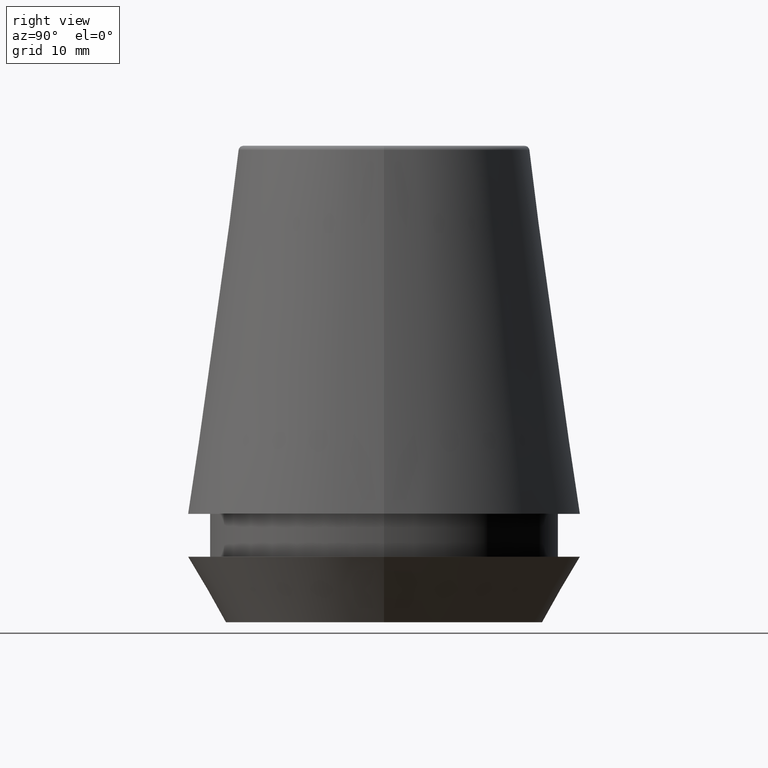
[diagram: clean part render]
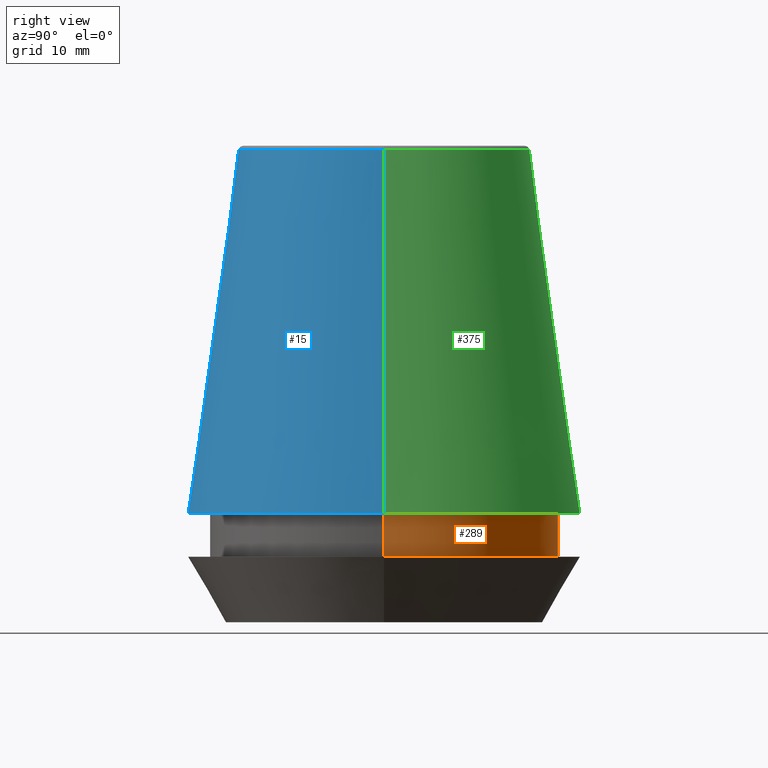
[diagram: same view with three faces highlighted in distinct colors, each labeled with its STEP entity id]
A machine part, right view with three faces highlighted in distinct colors.
Their STEP definitions:

[orange] entity #289 — the highlighted cylindrical surface (partial cylindrical patch) has radius 14.6 mm, axis along (-0, -0, 1).
#14 = VECTOR ( 'NONE', #386, 1000.000000000000000 ) ;
#39 = DIRECTION ( 'NONE',  ( 1.000000000000000000, 0.0000000000000000000, 0.0000000000000000000 ) ) ;
#53 = CARTESIAN_POINT ( 'NONE',  ( 0.0000000000000000000, 0.0000000000000000000, 5.500000000000005300 ) ) ;
#71 = EDGE_LOOP ( 'NONE', ( #118, #343, #288, #203 ) ) ;
#79 = AXIS2_PLACEMENT_3D ( 'NONE', #53, #110, #360 ) ;
#81 = CARTESIAN_POINT ( 'NONE',  ( -14.60000000000000000, 1.787984326755135800E-015, 101.8074564848000400 ) ) ;
#94 = CARTESIAN_POINT ( 'NONE',  ( 14.60000000000000000, 0.0000000000000000000, 9.099999999999997900 ) ) ;
#96 = CIRCLE ( 'NONE', #97, 14.60000000000000000 ) ;
#97 = AXIS2_PLACEMENT_3D ( 'NONE', #284, #128, #39 ) ;
#107 = AXIS2_PLACEMENT_3D ( 'NONE', #221, #334, #171 ) ;
#110 = DIRECTION ( 'NONE',  ( -0.0000000000000000000, -0.0000000000000000000, 1.000000000000000000 ) ) ;
#118 = ORIENTED_EDGE ( 'NONE', *, *, #326, .T. ) ;
#121 = VERTEX_POINT ( 'NONE', #94 ) ;
#128 = DIRECTION ( 'NONE',  ( -0.0000000000000000000, -0.0000000000000000000, 1.000000000000000000 ) ) ;
#156 = CIRCLE ( 'NONE', #79, 14.60000000000000000 ) ;
#170 = VECTOR ( 'NONE', #387, 1000.000000000000000 ) ;
#171 = DIRECTION ( 'NONE',  ( 1.000000000000000000, 0.0000000000000000000, 0.0000000000000000000 ) ) ;
#172 = CARTESIAN_POINT ( 'NONE',  ( 14.60000000000000000, 0.0000000000000000000, 101.8074564848000400 ) ) ;
#175 = CYLINDRICAL_SURFACE ( 'NONE', #107, 14.60000000000000000 ) ;
#199 = VERTEX_POINT ( 'NONE', #204 ) ;
#203 = ORIENTED_EDGE ( 'NONE', *, *, #367, .F. ) ;
#204 = CARTESIAN_POINT ( 'NONE',  ( 14.60000000000000000, 0.0000000000000000000, 5.500000000000005300 ) ) ;
#211 = VERTEX_POINT ( 'NONE', #359 ) ;
#221 = CARTESIAN_POINT ( 'NONE',  ( 0.0000000000000000000, 0.0000000000000000000, 101.8074564848000400 ) ) ;
#256 = LINE ( 'NONE', #81, #14 ) ;
#257 = VERTEX_POINT ( 'NONE', #353 ) ;
#274 = FACE_OUTER_BOUND ( 'NONE', #71, .T. ) ;
#284 = CARTESIAN_POINT ( 'NONE',  ( 0.0000000000000000000, 0.0000000000000000000, 9.099999999999997900 ) ) ;
#288 = ORIENTED_EDGE ( 'NONE', *, *, #324, .F. ) ;
#289 = ADVANCED_FACE ( 'NONE', ( #274 ), #175, .T. ) ;
#324 = EDGE_CURVE ( 'NONE', #121, #257, #96, .T. ) ;
#326 = EDGE_CURVE ( 'NONE', #199, #211, #156, .T. ) ;
#334 = DIRECTION ( 'NONE',  ( -0.0000000000000000000, -0.0000000000000000000, 1.000000000000000000 ) ) ;
#339 = LINE ( 'NONE', #172, #170 ) ;
#343 = ORIENTED_EDGE ( 'NONE', *, *, #370, .T. ) ;
#353 = CARTESIAN_POINT ( 'NONE',  ( -14.60000000000000000, 1.787984326755135800E-015, 9.099999999999997900 ) ) ;
#359 = CARTESIAN_POINT ( 'NONE',  ( -14.60000000000000000, 1.787984326755135800E-015, 5.500000000000005300 ) ) ;
#360 = DIRECTION ( 'NONE',  ( 1.000000000000000000, 0.0000000000000000000, 0.0000000000000000000 ) ) ;
#367 = EDGE_CURVE ( 'NONE', #199, #121, #339, .T. ) ;
#370 = EDGE_CURVE ( 'NONE', #211, #257, #256, .T. ) ;
#386 = DIRECTION ( 'NONE',  ( -0.0000000000000000000, -0.0000000000000000000, 1.000000000000000000 ) ) ;
#387 = DIRECTION ( 'NONE',  ( -0.0000000000000000000, -0.0000000000000000000, 1.000000000000000000 ) ) ;

[blue] entity #15 — the highlighted conical surface has half-angle 8 deg.
#4 = EDGE_CURVE ( 'NONE', #292, #219, #272, .T. ) ;
#6 = CARTESIAN_POINT ( 'NONE',  ( 0.0000000000000000000, 0.0000000000000000000, 39.65566924038402900 ) ) ;
#8 = DIRECTION ( 'NONE',  ( 1.000000000000000000, 0.0000000000000000000, 0.0000000000000000000 ) ) ;
#15 = ADVANCED_FACE ( 'NONE', ( #122 ), #21, .T. ) ;
#21 = CONICAL_SURFACE ( 'NONE', #296, 16.50032537154048700, 0.1396263401595395900 ) ;
#25 = LINE ( 'NONE', #88, #266 ) ;
#28 = CIRCLE ( 'NONE', #231, 12.20600611160694300 ) ;
#57 = ORIENTED_EDGE ( 'NONE', *, *, #225, .F. ) ;
#62 = CARTESIAN_POINT ( 'NONE',  ( 0.0000000000000000000, 0.0000000000000000000, 9.099999999999997900 ) ) ;
#88 = CARTESIAN_POINT ( 'NONE',  ( 16.50032537154048700, 2.020707065114692300E-015, 9.099999999999997900 ) ) ;
#105 = CIRCLE ( 'NONE', #138, 16.50032537154048700 ) ;
#109 = ORIENTED_EDGE ( 'NONE', *, *, #349, .F. ) ;
#122 = FACE_OUTER_BOUND ( 'NONE', #142, .T. ) ;
#137 = CARTESIAN_POINT ( 'NONE',  ( 0.0000000000000000000, 0.0000000000000000000, 9.099999999999997900 ) ) ;
#138 = AXIS2_PLACEMENT_3D ( 'NONE', #137, #185, #8 ) ;
#142 = EDGE_LOOP ( 'NONE', ( #109, #57, #341, #232 ) ) ;
#161 = DIRECTION ( 'NONE',  ( -1.000000000000000000, 0.0000000000000000000, 0.0000000000000000000 ) ) ;
#163 = DIRECTION ( 'NONE',  ( -0.1391731009600586900, 0.0000000000000000000, -0.9902680687415712500 ) ) ;
#176 = CARTESIAN_POINT ( 'NONE',  ( 16.50032537154048700, 2.020707065114692300E-015, 9.099999999999997900 ) ) ;
#185 = DIRECTION ( 'NONE',  ( -0.0000000000000000000, -0.0000000000000000000, 1.000000000000000000 ) ) ;
#186 = VECTOR ( 'NONE', #163, 1000.000000000000000 ) ;
#212 = CARTESIAN_POINT ( 'NONE',  ( 12.20600611160694300, 1.757755848304969800E-015, 39.65566924038402900 ) ) ;
#213 = CARTESIAN_POINT ( 'NONE',  ( -16.50032537154048700, 0.0000000000000000000, 9.099999999999997900 ) ) ;
#216 = DIRECTION ( 'NONE',  ( 1.000000000000000000, 0.0000000000000000000, 0.0000000000000000000 ) ) ;
#219 = VERTEX_POINT ( 'NONE', #329 ) ;
#225 = EDGE_CURVE ( 'NONE', #292, #362, #28, .T. ) ;
#231 = AXIS2_PLACEMENT_3D ( 'NONE', #6, #294, #216 ) ;
#232 = ORIENTED_EDGE ( 'NONE', *, *, #283, .T. ) ;
#266 = VECTOR ( 'NONE', #358, 1000.000000000000000 ) ;
#272 = LINE ( 'NONE', #213, #186 ) ;
#283 = EDGE_CURVE ( 'NONE', #219, #361, #105, .T. ) ;
#292 = VERTEX_POINT ( 'NONE', #307 ) ;
#294 = DIRECTION ( 'NONE',  ( -0.0000000000000000000, -0.0000000000000000000, 1.000000000000000000 ) ) ;
#296 = AXIS2_PLACEMENT_3D ( 'NONE', #62, #321, #161 ) ;
#307 = CARTESIAN_POINT ( 'NONE',  ( -12.20600611160694300, 0.0000000000000000000, 39.65566924038402900 ) ) ;
#321 = DIRECTION ( 'NONE',  ( 0.0000000000000000000, 0.0000000000000000000, -1.000000000000000000 ) ) ;
#329 = CARTESIAN_POINT ( 'NONE',  ( -16.50032537154048700, 0.0000000000000000000, 9.099999999999997900 ) ) ;
#341 = ORIENTED_EDGE ( 'NONE', *, *, #4, .T. ) ;
#349 = EDGE_CURVE ( 'NONE', #362, #361, #25, .T. ) ;
#358 = DIRECTION ( 'NONE',  ( 0.1391731009600586900, 1.704378926181473100E-017, -0.9902680687415712500 ) ) ;
#361 = VERTEX_POINT ( 'NONE', #176 ) ;
#362 = VERTEX_POINT ( 'NONE', #212 ) ;

[green] entity #375 — the highlighted conical surface has half-angle 8 deg.
#4 = EDGE_CURVE ( 'NONE', #292, #219, #272, .T. ) ;
#25 = LINE ( 'NONE', #88, #266 ) ;
#31 = EDGE_LOOP ( 'NONE', ( #32, #140, #151, #45 ) ) ;
#32 = ORIENTED_EDGE ( 'NONE', *, *, #254, .F. ) ;
#35 = CARTESIAN_POINT ( 'NONE',  ( 0.0000000000000000000, 0.0000000000000000000, 39.65566924038402900 ) ) ;
#45 = ORIENTED_EDGE ( 'NONE', *, *, #4, .F. ) ;
#49 = CIRCLE ( 'NONE', #160, 12.20600611160694300 ) ;
#52 = AXIS2_PLACEMENT_3D ( 'NONE', #354, #268, #210 ) ;
#55 = AXIS2_PLACEMENT_3D ( 'NONE', #371, #59, #70 ) ;
#59 = DIRECTION ( 'NONE',  ( 0.0000000000000000000, 0.0000000000000000000, -1.000000000000000000 ) ) ;
#70 = DIRECTION ( 'NONE',  ( -1.000000000000000000, 0.0000000000000000000, 0.0000000000000000000 ) ) ;
#88 = CARTESIAN_POINT ( 'NONE',  ( 16.50032537154048700, 2.020707065114692300E-015, 9.099999999999997900 ) ) ;
#90 = FACE_OUTER_BOUND ( 'NONE', #31, .T. ) ;
#140 = ORIENTED_EDGE ( 'NONE', *, *, #349, .T. ) ;
#151 = ORIENTED_EDGE ( 'NONE', *, *, #364, .T. ) ;
#160 = AXIS2_PLACEMENT_3D ( 'NONE', #35, #363, #220 ) ;
#163 = DIRECTION ( 'NONE',  ( -0.1391731009600586900, 0.0000000000000000000, -0.9902680687415712500 ) ) ;
#176 = CARTESIAN_POINT ( 'NONE',  ( 16.50032537154048700, 2.020707065114692300E-015, 9.099999999999997900 ) ) ;
#179 = CIRCLE ( 'NONE', #52, 16.50032537154048700 ) ;
#186 = VECTOR ( 'NONE', #163, 1000.000000000000000 ) ;
#210 = DIRECTION ( 'NONE',  ( 1.000000000000000000, 0.0000000000000000000, 0.0000000000000000000 ) ) ;
#212 = CARTESIAN_POINT ( 'NONE',  ( 12.20600611160694300, 1.757755848304969800E-015, 39.65566924038402900 ) ) ;
#213 = CARTESIAN_POINT ( 'NONE',  ( -16.50032537154048700, 0.0000000000000000000, 9.099999999999997900 ) ) ;
#219 = VERTEX_POINT ( 'NONE', #329 ) ;
#220 = DIRECTION ( 'NONE',  ( 1.000000000000000000, 0.0000000000000000000, 0.0000000000000000000 ) ) ;
#240 = CONICAL_SURFACE ( 'NONE', #55, 16.50032537154048700, 0.1396263401595395900 ) ;
#254 = EDGE_CURVE ( 'NONE', #362, #292, #49, .T. ) ;
#266 = VECTOR ( 'NONE', #358, 1000.000000000000000 ) ;
#268 = DIRECTION ( 'NONE',  ( -0.0000000000000000000, -0.0000000000000000000, 1.000000000000000000 ) ) ;
#272 = LINE ( 'NONE', #213, #186 ) ;
#292 = VERTEX_POINT ( 'NONE', #307 ) ;
#307 = CARTESIAN_POINT ( 'NONE',  ( -12.20600611160694300, 0.0000000000000000000, 39.65566924038402900 ) ) ;
#329 = CARTESIAN_POINT ( 'NONE',  ( -16.50032537154048700, 0.0000000000000000000, 9.099999999999997900 ) ) ;
#349 = EDGE_CURVE ( 'NONE', #362, #361, #25, .T. ) ;
#354 = CARTESIAN_POINT ( 'NONE',  ( 0.0000000000000000000, 0.0000000000000000000, 9.099999999999997900 ) ) ;
#358 = DIRECTION ( 'NONE',  ( 0.1391731009600586900, 1.704378926181473100E-017, -0.9902680687415712500 ) ) ;
#361 = VERTEX_POINT ( 'NONE', #176 ) ;
#362 = VERTEX_POINT ( 'NONE', #212 ) ;
#363 = DIRECTION ( 'NONE',  ( -0.0000000000000000000, -0.0000000000000000000, 1.000000000000000000 ) ) ;
#364 = EDGE_CURVE ( 'NONE', #361, #219, #179, .T. ) ;
#371 = CARTESIAN_POINT ( 'NONE',  ( 0.0000000000000000000, 0.0000000000000000000, 9.099999999999997900 ) ) ;
#375 = ADVANCED_FACE ( 'NONE', ( #90 ), #240, .T. ) ;